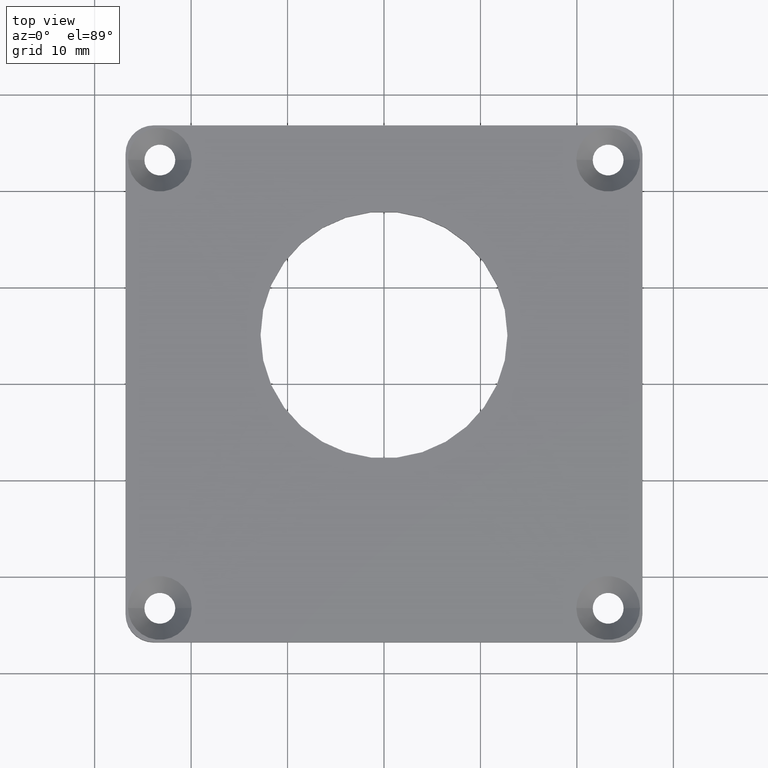
[diagram: clean part render]
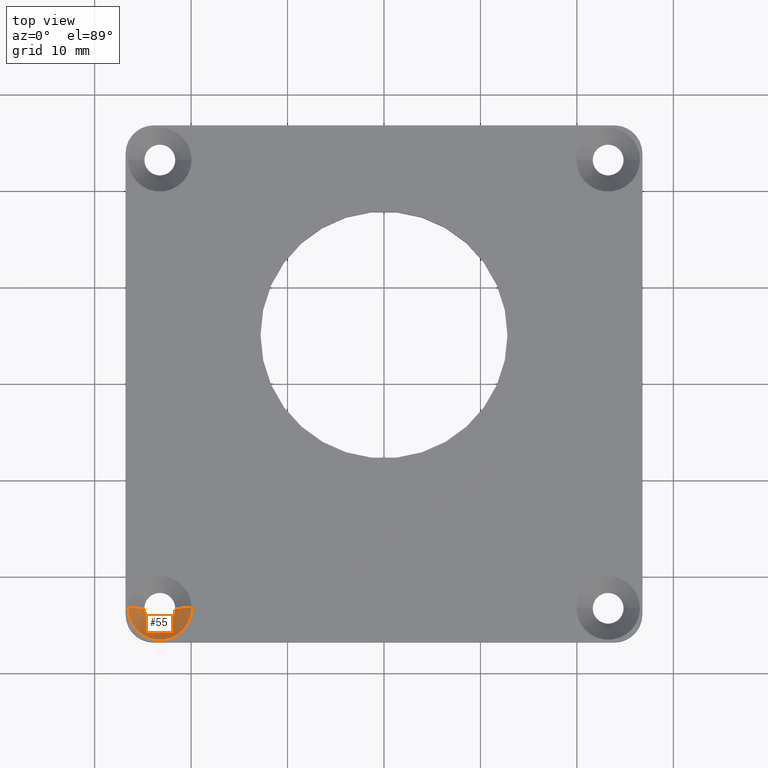
[diagram: same view with one face highlighted and labeled with its STEP entity id]
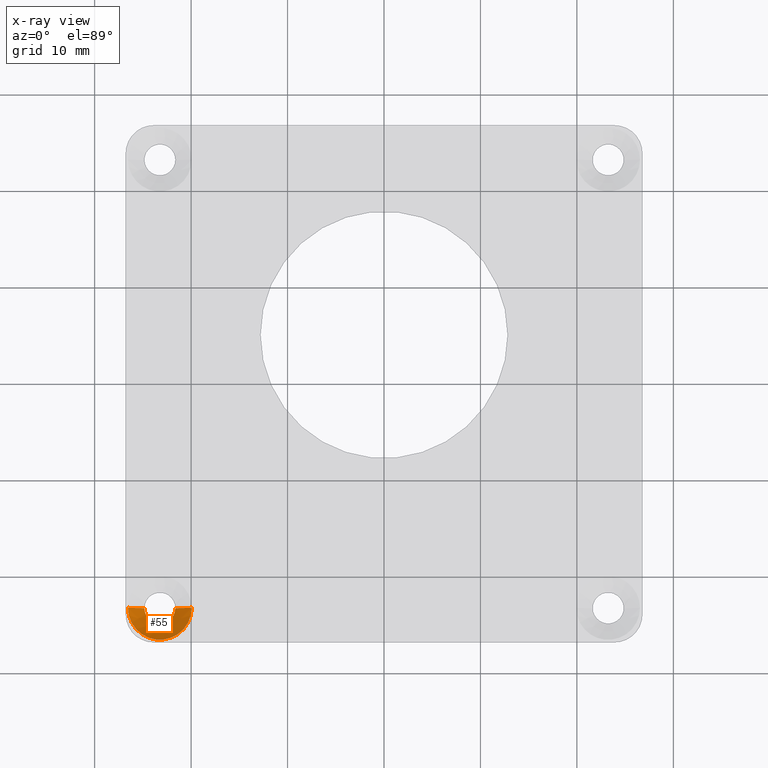
[diagram: x-ray of the same camera — body ghosted, the highlighted face saturated]
A machine part, top view. The second image highlights one B-rep face of the part: STEP entity #55.
The next image is the same camera in x-ray: the body ghosted, the highlighted face saturated — about 0% of this face is hidden behind the body in this view.
In plain terms, the highlighted conical surface has half-angle 41 deg.
Its self-contained STEP definition (entity closure, byte-faithful):
#6 = AXIS2_PLACEMENT_3D ( 'NONE', #835, #741, #600 ) ;
#33 = VERTEX_POINT ( 'NONE', #512 ) ;
#45 = AXIS2_PLACEMENT_3D ( 'NONE', #860, #900, #775 ) ;
#48 = VECTOR ( 'NONE', #330, 39.37007874015748100 ) ;
#55 = ADVANCED_FACE ( 'NONE', ( #424 ), #910, .F. ) ;
#78 = VERTEX_POINT ( 'NONE', #875 ) ;
#84 = CARTESIAN_POINT ( 'NONE',  ( -1.045000000000000200, -0.9150000000000002600, 0.04921259842519685300 ) ) ;
#102 = VERTEX_POINT ( 'NONE', #898 ) ;
#186 = CARTESIAN_POINT ( 'NONE',  ( -1.045000000000000200, -0.9150000000000002600, 0.04921259842519685300 ) ) ;
#235 = EDGE_CURVE ( 'NONE', #78, #33, #651, .T. ) ;
#250 = ORIENTED_EDGE ( 'NONE', *, *, #235, .F. ) ;
#330 = DIRECTION ( 'NONE',  ( -0.6560590289905072800, 8.034405899049453800E-017, 0.7547095802227720100 ) ) ;
#366 = EDGE_CURVE ( 'NONE', #523, #33, #404, .T. ) ;
#386 = EDGE_CURVE ( 'NONE', #102, #78, #830, .T. ) ;
#404 = CIRCLE ( 'NONE', #6, 0.1299999999999999800 ) ;
#424 = FACE_OUTER_BOUND ( 'NONE', #638, .T. ) ;
#426 = DIRECTION ( 'NONE',  ( -0.0000000000000000000, -0.0000000000000000000, 1.000000000000000000 ) ) ;
#441 = ORIENTED_EDGE ( 'NONE', *, *, #499, .T. ) ;
#491 = DIRECTION ( 'NONE',  ( 1.000000000000000000, 0.0000000000000000000, 0.0000000000000000000 ) ) ;
#499 = EDGE_CURVE ( 'NONE', #102, #523, #737, .T. ) ;
#512 = CARTESIAN_POINT ( 'NONE',  ( -0.7850000000000002500, -0.9150000000000002600, 0.04921259842519685300 ) ) ;
#516 = AXIS2_PLACEMENT_3D ( 'NONE', #921, #426, #491 ) ;
#523 = VERTEX_POINT ( 'NONE', #186 ) ;
#565 = CARTESIAN_POINT ( 'NONE',  ( -0.7850000000000002500, -0.9150000000000002600, 0.04921259842519685300 ) ) ;
#600 = DIRECTION ( 'NONE',  ( 1.000000000000000000, 0.0000000000000000000, 0.0000000000000000000 ) ) ;
#638 = EDGE_LOOP ( 'NONE', ( #694, #441, #794, #250 ) ) ;
#651 = LINE ( 'NONE', #565, #685 ) ;
#685 = VECTOR ( 'NONE', #871, 39.37007874015748100 ) ;
#694 = ORIENTED_EDGE ( 'NONE', *, *, #386, .F. ) ;
#737 = LINE ( 'NONE', #84, #48 ) ;
#741 = DIRECTION ( 'NONE',  ( -0.0000000000000000000, -0.0000000000000000000, 1.000000000000000000 ) ) ;
#775 = DIRECTION ( 'NONE',  ( 1.000000000000000000, 0.0000000000000000000, 0.0000000000000000000 ) ) ;
#794 = ORIENTED_EDGE ( 'NONE', *, *, #366, .T. ) ;
#830 = CIRCLE ( 'NONE', #45, 0.06299999999999998700 ) ;
#835 = CARTESIAN_POINT ( 'NONE',  ( -0.9150000000000002600, -0.9150000000000002600, 0.04921259842519685300 ) ) ;
#860 = CARTESIAN_POINT ( 'NONE',  ( -0.9150000000000002600, -0.9150000000000002600, -0.02786208485861078900 ) ) ;
#871 = DIRECTION ( 'NONE',  ( 0.6560590289905072800, 0.0000000000000000000, 0.7547095802227720100 ) ) ;
#875 = CARTESIAN_POINT ( 'NONE',  ( -0.8520000000000002000, -0.9150000000000002600, -0.02786208485861078900 ) ) ;
#898 = CARTESIAN_POINT ( 'NONE',  ( -0.9780000000000002000, -0.9150000000000002600, -0.02786208485861078900 ) ) ;
#900 = DIRECTION ( 'NONE',  ( -0.0000000000000000000, -0.0000000000000000000, 1.000000000000000000 ) ) ;
#910 = CONICAL_SURFACE ( 'NONE', #516, 0.1299999999999999800, 0.7155849933176751100 ) ;
#921 = CARTESIAN_POINT ( 'NONE',  ( -0.9150000000000002600, -0.9150000000000002600, 0.04921259842519685300 ) ) ;